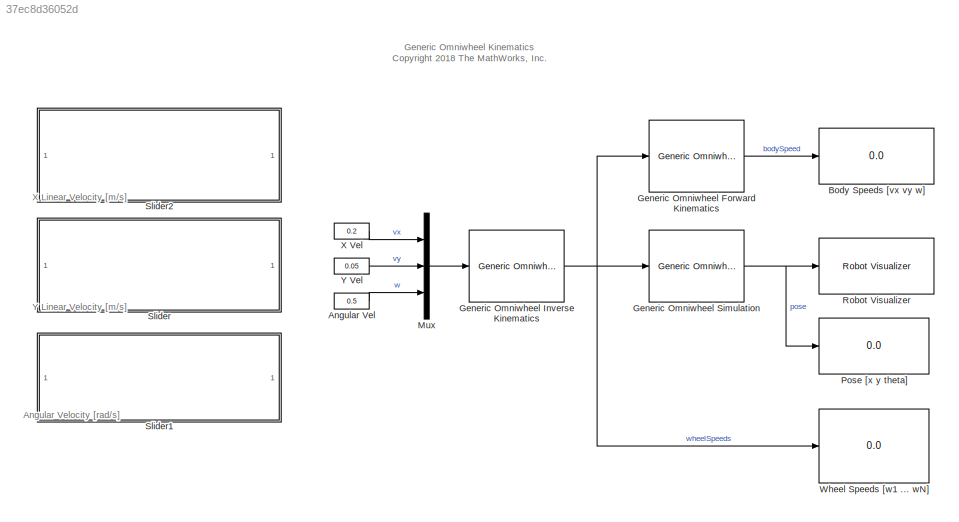
MODEL slx_37ec8d36052d
KIND model
CONFIG AbsTol = auto
CONFIG EnableMultiTasking = on
CONFIG FixedStep = 0.01
CONFIG MaxStep = auto
CONFIG MinStep = auto
CONFIG PreLoadFcn = sampleTime = 0.05;\n\n% Vehicle Parameters\nwheelRadius = 0.1;\nrobotRadius = 0.25;\nwheelAngles = [0, 2*pi/3, -2*pi/3];
CONFIG RelTol = 1e-3
CONFIG SampleTimeConstraint = Unconstrained
CONFIG Solver = VariableStepAuto
CONFIG SolverName = VariableStepAuto
CONFIG StartTime = 0.0
CONFIG StopTime = inf
BLOCK [Constant] Angular Vel
  Value = 0.5
BLOCK [Display] Body Speeds [vx vy w]
  Decimation = 1
  Ports = [1]
BLOCK [Reference] Generic Omniwheel Forward Kinematics  REF=mobileRoboticsLib/Kinematic Models/Generic Omniwheel/Generic Omniwheel 
Forward Kinematics
  Ports = [1, 1]
  SourceBlock = mobileRoboticsLib/Kinematic Models/Generic Omniwheel/Generic Omniwheel \nForward Kinematics
  SourceProductName = Mobile Robotics Simulation Toolbox
  SourceType = Generic Omniwheel Forward Kinematics
BLOCK [Reference] Generic Omniwheel Inverse Kinematics   REF=mobileRoboticsLib/Kinematic Models/Generic Omniwheel/Generic Omniwheel 
Inverse Kinematics 
  Ports = [1, 1]
  SourceBlock = mobileRoboticsLib/Kinematic Models/Generic Omniwheel/Generic Omniwheel \nInverse Kinematics
  SourceProductName = Mobile Robotics Simulation Toolbox
  SourceType = Generic Omniwheel Inverse Kinematics
BLOCK [Reference] Generic Omniwheel Simulation  REF=mobileRoboticsLib/Kinematic Models/Generic Omniwheel/Generic Omniwheel Simulation
  Ports = [1, 1]
  SourceBlock = mobileRoboticsLib/Kinematic Models/Generic Omniwheel/Generic Omniwheel Simulation
  SourceProductName = Mobile Robotics Simulation Toolbox
  SourceType = Generic Omniwheel Simulation
BLOCK [Mux] Mux
  DisplayOption = bar
  Inputs = 3
  Ports = [3, 1]
BLOCK [Display] Pose [x y theta]
  Decimation = 1
  Ports = [1]
BLOCK [Reference] Robot Visualizer  REF=mobileRoboticsLib/Environments/Robot Visualizer
  Ports = [1]
  Priority = 99
  SourceBlock = mobileRoboticsLib/Environments/Robot Visualizer
  SourceProductName = Mobile Robotics Simulation Toolbox
  SourceType = Visualizer2D
BLOCK [SubSystem] Slider
  DialogController = hmiCreateDDGDialog
  IsWebBlock = on
  MaskHideContents = on
  Ports = []
  RequestExecContextInheritance = off
BLOCK [SubSystem] Slider1
  DialogController = hmiCreateDDGDialog
  IsWebBlock = on
  MaskHideContents = on
  Ports = []
  RequestExecContextInheritance = off
BLOCK [SubSystem] Slider2
  DialogController = hmiCreateDDGDialog
  IsWebBlock = on
  MaskHideContents = on
  Ports = []
  RequestExecContextInheritance = off
BLOCK [Display] Wheel Speeds [w1 ... wN]
  Decimation = 1
  Ports = [1]
BLOCK [Constant] X Vel
  Value = 0.2
BLOCK [Constant] Y Vel
  Value = 0.05
ANNOTATION (root): Angular Velocity [rad/s]
ANNOTATION (root): Generic Omniwheel Kinematics <copyright redacted>
ANNOTATION (root): X Linear Velocity [m/s]
ANNOTATION (root): Y Linear Velocity [m/s]
LINE Angular Vel:1 -> Mux:3
LINE Generic Omniwheel Forward Kinematics:1 -> Body Speeds [vx vy w]:1
NET Generic Omniwheel Inverse Kinematics :1 -> Generic Omniwheel Forward Kinematics:1, Generic Omniwheel Simulation:1, Wheel Speeds [w1 ... wN]:1
NET Generic Omniwheel Simulation:1 -> Pose [x y theta]:1, Robot Visualizer:1
LINE Mux:1 -> Generic Omniwheel Inverse Kinematics :1
LINE X Vel:1 -> Mux:1
LINE Y Vel:1 -> Mux:2
note: NET lines group one-source signal fan-out (src -> all destinations, sorted); 1:1 wires keep LINE
